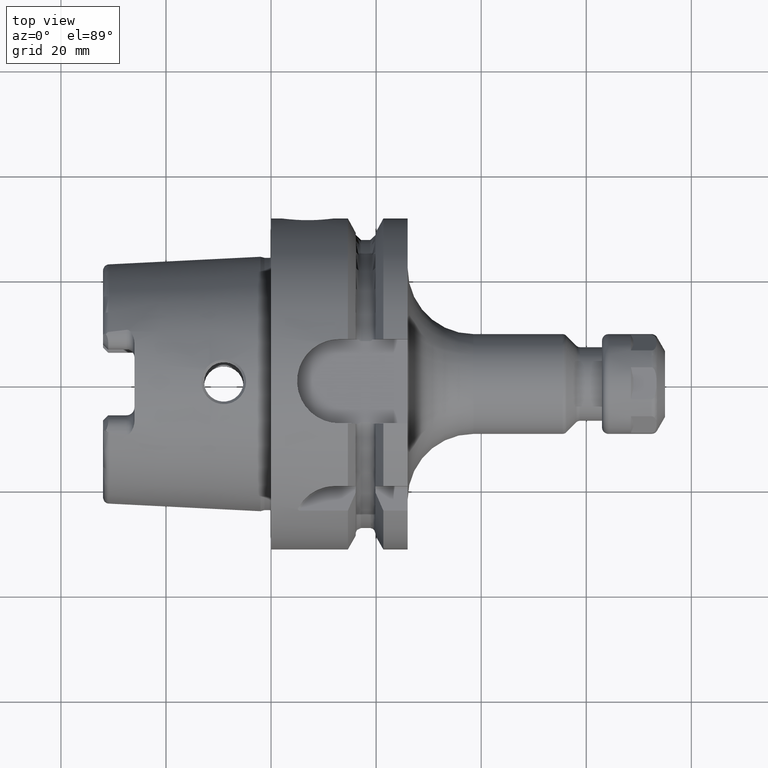
[diagram: clean part render]
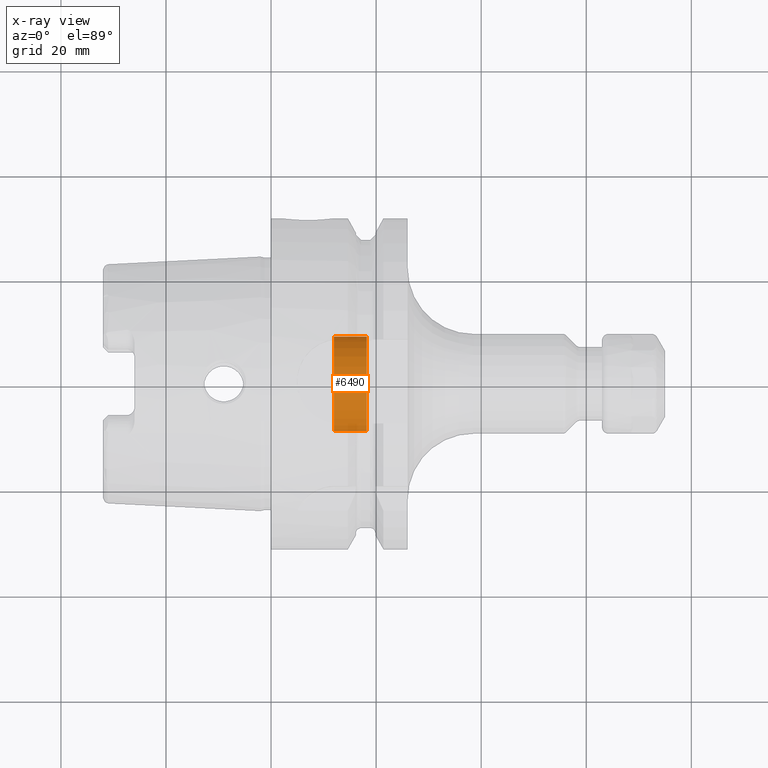
[diagram: x-ray — body ghosted, one internal face saturated and labeled with its STEP entity id]
A machine part, top view, then the same camera in x-ray: the body is ghosted and one INTERNAL B-rep face — a face not visible from any outside direction — is saturated and labeled: STEP entity #6490.
In plain terms, the highlighted cylindrical surface (partial cylindrical patch) has radius 9 mm, axis along (1, 0, 0).
Its self-contained STEP definition (entity closure, byte-faithful):
#6439=CARTESIAN_POINT('',(1.19625E1,0.E0,0.E0));
#6440=DIRECTION('',(-1.E0,0.E0,0.E0));
#6441=DIRECTION('',(0.E0,-1.E0,0.E0));
#6442=AXIS2_PLACEMENT_3D('',#6439,#6440,#6441);
#6444=DIRECTION('',(1.E0,0.E0,0.E0));
#6445=VECTOR('',#6444,6.261593106483E0);
#6446=CARTESIAN_POINT('',(1.19625E1,9.E0,0.E0));
#6447=LINE('',#6446,#6445);
#6448=CARTESIAN_POINT('',(1.822409310648E1,0.E0,0.E0));
#6449=DIRECTION('',(1.E0,0.E0,0.E0));
#6450=DIRECTION('',(0.E0,1.E0,0.E0));
#6451=AXIS2_PLACEMENT_3D('',#6448,#6449,#6450);
#6458=DIRECTION('',(1.E0,0.E0,0.E0));
#6459=VECTOR('',#6458,6.261593106483E0);
#6460=CARTESIAN_POINT('',(1.19625E1,-9.E0,0.E0));
#6461=LINE('',#6460,#6459);
#6467=CARTESIAN_POINT('',(1.822409310648E1,9.E0,0.E0));
#6468=CARTESIAN_POINT('',(1.822409310648E1,-9.E0,0.E0));
#6469=VERTEX_POINT('',#6467);
#6470=VERTEX_POINT('',#6468);
#6471=CARTESIAN_POINT('',(1.19625E1,9.E0,0.E0));
#6472=CARTESIAN_POINT('',(1.19625E1,-9.E0,0.E0));
#6473=VERTEX_POINT('',#6471);
#6474=VERTEX_POINT('',#6472);
#6475=CARTESIAN_POINT('',(-3.885261521357E1,0.E0,0.E0));
#6476=DIRECTION('',(1.E0,0.E0,0.E0));
#6477=DIRECTION('',(0.E0,1.E0,0.E0));
#6478=AXIS2_PLACEMENT_3D('',#6475,#6476,#6477);
#6479=CYLINDRICAL_SURFACE('',#6478,9.E0);
#6481=ORIENTED_EDGE('',*,*,#6480,.T.);
#6483=ORIENTED_EDGE('',*,*,#6482,.T.);
#6485=ORIENTED_EDGE('',*,*,#6484,.T.);
#6487=ORIENTED_EDGE('',*,*,#6486,.F.);
#6488=EDGE_LOOP('',(#6481,#6483,#6485,#6487));
#6489=FACE_OUTER_BOUND('',#6488,.F.);
#6490=ADVANCED_FACE('',(#6489),#6479,.T.);
#6443=CIRCLE('',#6442,9.E0);
#6452=CIRCLE('',#6451,9.E0);
#6480=EDGE_CURVE('',#6474,#6473,#6443,.T.);
#6482=EDGE_CURVE('',#6473,#6469,#6447,.T.);
#6484=EDGE_CURVE('',#6469,#6470,#6452,.T.);
#6486=EDGE_CURVE('',#6474,#6470,#6461,.T.);